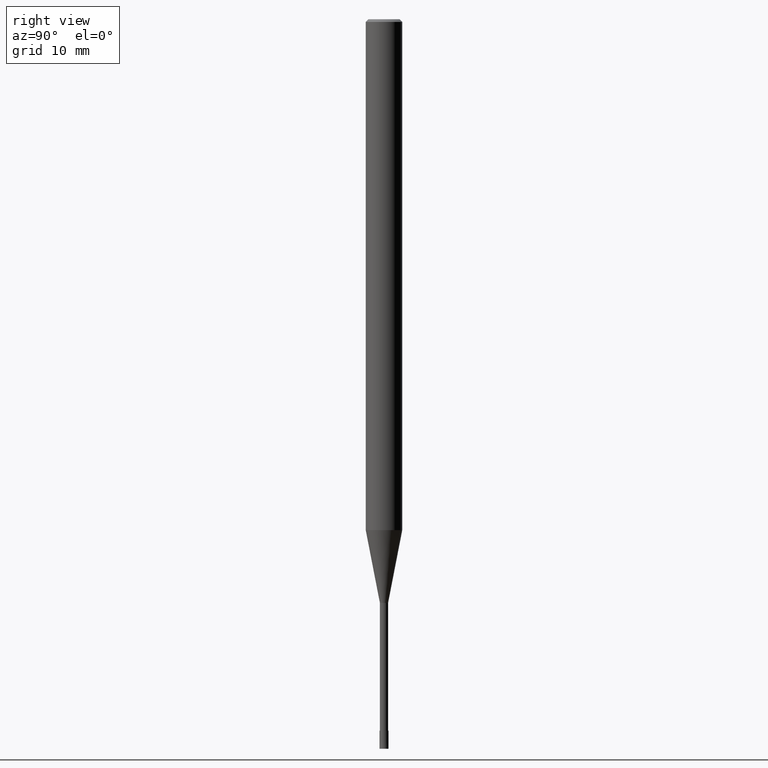
[diagram: clean part render]
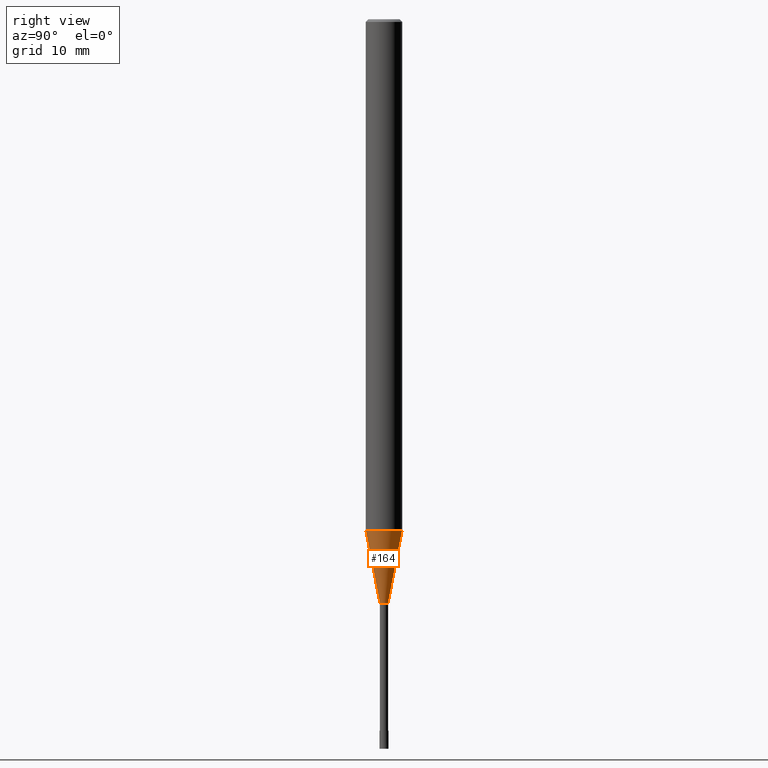
[diagram: same view with one face highlighted and labeled with its STEP entity id]
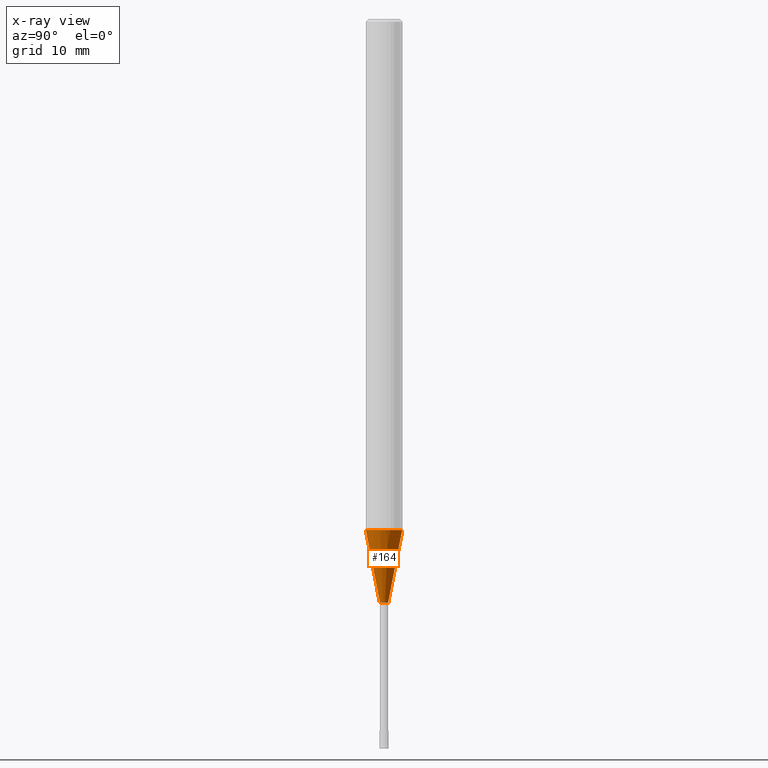
[diagram: x-ray of the same camera — body ghosted, the highlighted face saturated]
A machine part, right view. The second image highlights one B-rep face of the part: STEP entity #164.
The next image is the same camera in x-ray: the body ghosted, the highlighted face saturated — about 0% of this face is hidden behind the body in this view.
In plain terms, the highlighted conical surface has half-angle 11 deg.
Its self-contained STEP definition (entity closure, byte-faithful):
#102=EDGE_CURVE('',#134,#174,#242,.T.);
#132=EDGE_CURVE('',#206,#174,#273,.T.);
#134=VERTEX_POINT('',#275);
#140=EDGE_CURVE('',#178,#134,#281,.T.);
#164=ADVANCED_FACE('',(#311),#312,.T.);
#170=EDGE_CURVE('',#206,#178,#318,.T.);
#174=VERTEX_POINT('',#322);
#178=VERTEX_POINT('',#326);
#206=VERTEX_POINT('',#359);
#242=LINE('',#388,#389);
#273=CIRCLE('',#433,1.99995);
#275=CARTESIAN_POINT('',(5.51011628902379E-017,-0.44995,-64.0));
#281=CIRCLE('',#443,0.44995);
#311=FACE_OUTER_BOUND('',#479,.T.);
#312=CONICAL_SURFACE('',#480,1.22495,0.191987597119561);
#318=LINE('',#488,#489);
#322=CARTESIAN_POINT('',(2.44915147732706E-016,-1.99995,-56.026));
#326=CARTESIAN_POINT('',(0.0,0.44995,-64.0));
#359=CARTESIAN_POINT('',(0.0,1.99995,-56.026));
#388=CARTESIAN_POINT('',(1.50008155311472E-016,-1.22495,-60.013));
#389=VECTOR('',#564,1.0);
#433=AXIS2_PLACEMENT_3D('',#589,#590,#591);
#443=AXIS2_PLACEMENT_3D('',#595,#596,#597);
#479=EDGE_LOOP('',(#649,#650,#651,#652));
#480=AXIS2_PLACEMENT_3D('',#653,#654,#655);
#488=CARTESIAN_POINT('',(-1.50008155311472E-016,1.22495,-60.013));
#489=VECTOR('',#659,1.0);
#564=DIRECTION('',(2.33667566290819E-017,-0.190810349433081,0.981626920244767));
#589=CARTESIAN_POINT('',(0.0,0.0,-56.026));
#590=DIRECTION('',(0.0,0.0,-1.0));
#591=DIRECTION('',(0.0,1.0,0.0));
#595=CARTESIAN_POINT('',(0.0,0.0,-64.0));
#596=DIRECTION('',(0.0,0.0,-1.0));
#597=DIRECTION('',(0.0,1.0,0.0));
#649=ORIENTED_EDGE('',*,*,#170,.F.);
#650=ORIENTED_EDGE('',*,*,#132,.T.);
#651=ORIENTED_EDGE('',*,*,#102,.F.);
#652=ORIENTED_EDGE('',*,*,#140,.F.);
#653=CARTESIAN_POINT('',(0.0,0.0,-60.013));
#654=DIRECTION('',(-0.0,-0.0,1.0));
#655=DIRECTION('',(0.0,1.0,0.0));
#659=DIRECTION('',(2.33667566290819E-017,-0.190810349433081,-0.981626920244767));